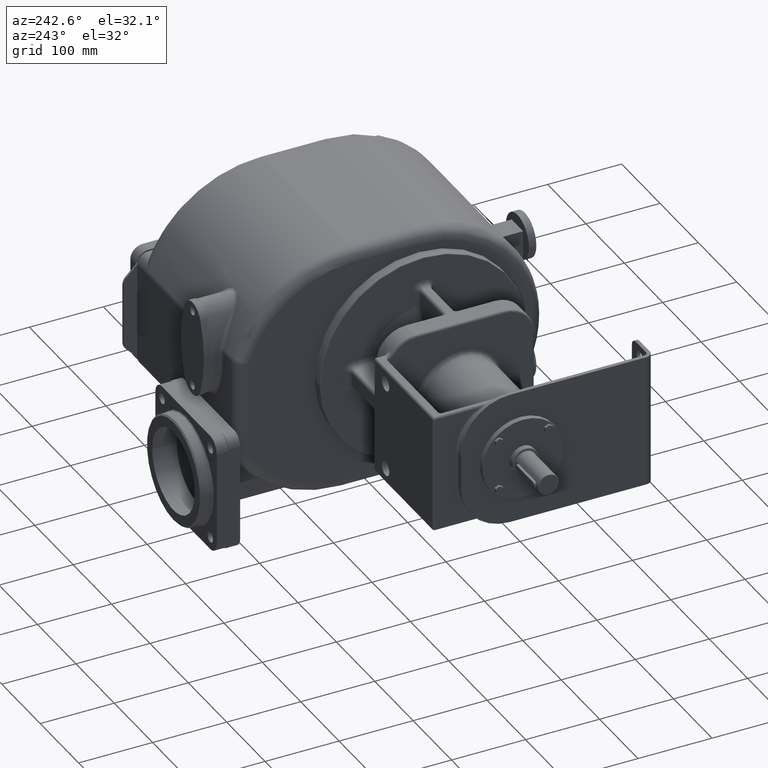
[diagram: clean part render]
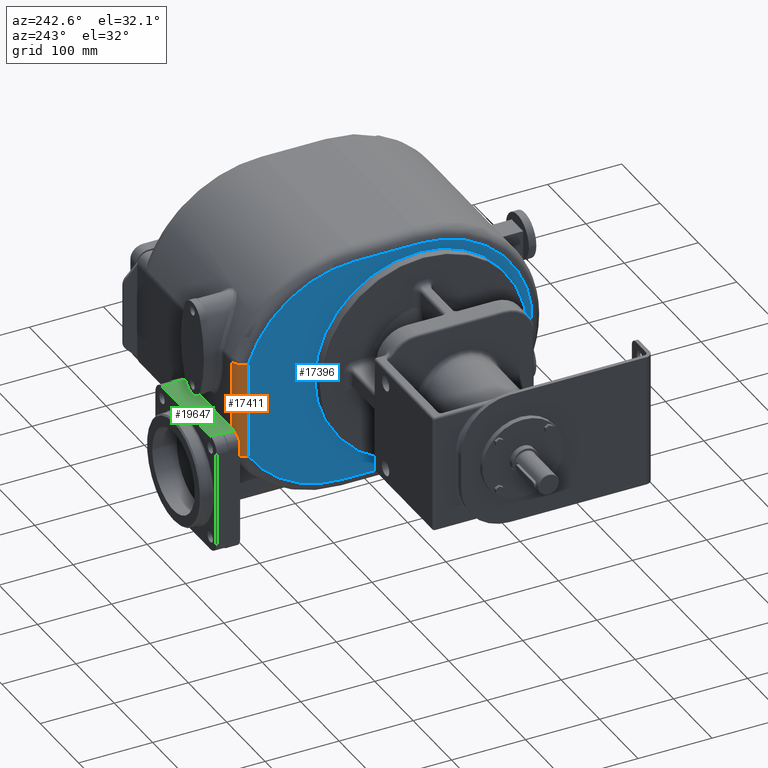
[diagram: same view with three faces highlighted in distinct colors, each labeled with its STEP entity id]
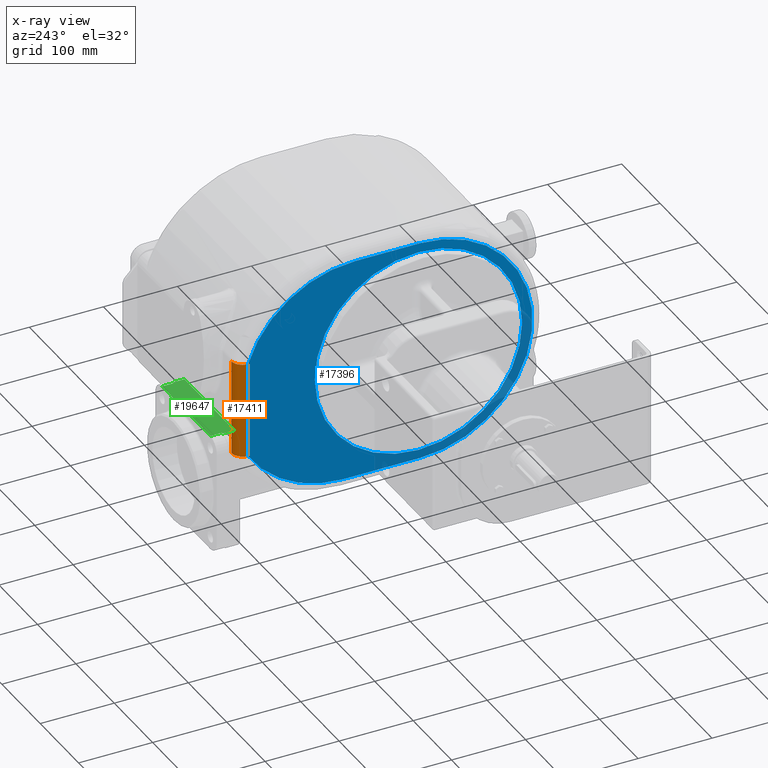
[diagram: x-ray of the same camera — body ghosted, the three highlighted faces saturated]
A machine part, auxiliary view with three faces highlighted in distinct colors.
The next image is the same camera in x-ray (body ghosted, the three faces saturated) — at least one of them is partly hidden behind the body in this view.
Their STEP definitions:

[orange] entity #17411 — the highlighted cylindrical surface (edge-blend (fillet) strip) has radius 15 mm, axis along (0, 0, -1).
#3656=DIRECTION('',(0.E0,0.E0,-1.E0));
#3657=VECTOR('',#3656,1.3E2);
#3658=CARTESIAN_POINT('',(-7.E1,4.E2,4.8E1));
#3659=LINE('',#3658,#3657);
#3693=CARTESIAN_POINT('',(-5.5E1,4.E2,4.8E1));
#3694=DIRECTION('',(0.E0,0.E0,-1.E0));
#3695=DIRECTION('',(-1.E0,0.E0,0.E0));
#3696=AXIS2_PLACEMENT_3D('',#3693,#3694,#3695);
#3842=DIRECTION('',(0.E0,0.E0,-1.E0));
#3843=VECTOR('',#3842,1.299999999790E2);
#3844=CARTESIAN_POINT('',(-5.5E1,4.15E2,4.799999999179E1));
#3845=LINE('',#3844,#3843);
#3964=CARTESIAN_POINT('',(-5.5E1,4.E2,-8.2E1));
#3965=DIRECTION('',(0.E0,0.E0,-1.E0));
#3966=DIRECTION('',(-1.E0,0.E0,0.E0));
#3967=AXIS2_PLACEMENT_3D('',#3964,#3965,#3966);
#11647=CARTESIAN_POINT('',(-5.5E1,4.15E2,4.799999999179E1));
#11648=CARTESIAN_POINT('',(-5.5E1,4.15E2,-8.199999998721E1));
#11649=VERTEX_POINT('',#11647);
#11650=VERTEX_POINT('',#11648);
#11651=CARTESIAN_POINT('',(-7.E1,4.E2,4.8E1));
#11652=CARTESIAN_POINT('',(-7.E1,4.E2,-8.2E1));
#11653=VERTEX_POINT('',#11651);
#11654=VERTEX_POINT('',#11652);
#17397=CARTESIAN_POINT('',(-5.5E1,4.E2,4.929340079489E1));
#17398=DIRECTION('',(0.E0,0.E0,-1.E0));
#17399=DIRECTION('',(-1.E0,0.E0,0.E0));
#17400=AXIS2_PLACEMENT_3D('',#17397,#17398,#17399);
#17401=CYLINDRICAL_SURFACE('',#17400,1.5E1);
#17403=ORIENTED_EDGE('',*,*,#17402,.F.);
#17405=ORIENTED_EDGE('',*,*,#17404,.F.);
#17406=ORIENTED_EDGE('',*,*,#17377,.T.);
#17408=ORIENTED_EDGE('',*,*,#17407,.T.);
#17409=EDGE_LOOP('',(#17403,#17405,#17406,#17408));
#17410=FACE_OUTER_BOUND('',#17409,.F.);
#17411=ADVANCED_FACE('',(#17410),#17401,.T.);
#3697=CIRCLE('',#3696,1.5E1);
#3968=CIRCLE('',#3967,1.5E1);
#17377=EDGE_CURVE('',#11653,#11654,#3659,.T.);
#17402=EDGE_CURVE('',#11649,#11650,#3845,.T.);
#17404=EDGE_CURVE('',#11653,#11649,#3697,.T.);
#17407=EDGE_CURVE('',#11654,#11650,#3968,.T.);

[blue] entity #17396 — the highlighted planar face has unit normal (1, 0, 0).
#3656=DIRECTION('',(0.E0,0.E0,-1.E0));
#3657=VECTOR('',#3656,1.3E2);
#3658=CARTESIAN_POINT('',(-7.E1,4.E2,4.8E1));
#3659=LINE('',#3658,#3657);
#3660=CARTESIAN_POINT('',(-7.E1,2.557779489814E2,0.E0));
#3661=DIRECTION('',(-1.E0,0.E0,0.E0));
#3662=DIRECTION('',(0.E0,0.E0,1.E0));
#3663=AXIS2_PLACEMENT_3D('',#3660,#3661,#3662);
#3665=DIRECTION('',(0.E0,1.E0,0.E0));
#3666=VECTOR('',#3665,8.777794898144E1);
#3667=CARTESIAN_POINT('',(-7.E1,1.68E2,1.52E2));
#3668=LINE('',#3667,#3666);
#3669=CARTESIAN_POINT('',(-7.E1,1.68E2,0.E0));
#3670=DIRECTION('',(-1.E0,0.E0,0.E0));
#3671=DIRECTION('',(0.E0,0.E0,-1.E0));
#3672=AXIS2_PLACEMENT_3D('',#3669,#3670,#3671);
#3674=DIRECTION('',(0.E0,-1.E0,0.E0));
#3675=VECTOR('',#3674,1.040156259538E2);
#3676=CARTESIAN_POINT('',(-7.E1,2.720156259538E2,-1.52E2));
#3677=LINE('',#3676,#3675);
#3678=CARTESIAN_POINT('',(-7.E1,2.720156259538E2,0.E0));
#3679=DIRECTION('',(-1.E0,0.E0,0.E0));
#3680=DIRECTION('',(0.E0,8.420024608303E-1,-5.394736842105E-1));
#3681=AXIS2_PLACEMENT_3D('',#3678,#3679,#3680);
#3683=CARTESIAN_POINT('',(-7.E1,1.7E2,0.E0));
#3684=DIRECTION('',(-1.E0,0.E0,0.E0));
#3685=DIRECTION('',(0.E0,-1.E0,0.E0));
#3686=AXIS2_PLACEMENT_3D('',#3683,#3684,#3685);
#3688=CARTESIAN_POINT('',(-7.E1,1.7E2,0.E0));
#3689=DIRECTION('',(-1.E0,0.E0,0.E0));
#3690=DIRECTION('',(0.E0,1.E0,0.E0));
#3691=AXIS2_PLACEMENT_3D('',#3688,#3689,#3690);
#11651=CARTESIAN_POINT('',(-7.E1,4.E2,4.8E1));
#11652=CARTESIAN_POINT('',(-7.E1,4.E2,-8.2E1));
#11653=VERTEX_POINT('',#11651);
#11654=VERTEX_POINT('',#11652);
#11655=CARTESIAN_POINT('',(-7.E1,2.720156259538E2,-1.52E2));
#11656=VERTEX_POINT('',#11655);
#11661=CARTESIAN_POINT('',(-7.E1,1.68E2,-1.52E2));
#11662=VERTEX_POINT('',#11661);
#11665=CARTESIAN_POINT('',(-7.E1,1.68E2,1.52E2));
#11666=VERTEX_POINT('',#11665);
#11669=CARTESIAN_POINT('',(-7.E1,2.557779489814E2,1.52E2));
#11670=VERTEX_POINT('',#11669);
#12040=CARTESIAN_POINT('',(-7.E1,3.E1,7.931755456707E-14));
#12041=CARTESIAN_POINT('',(-7.E1,3.1E2,-6.217247937901E-14));
#12042=VERTEX_POINT('',#12040);
#12043=VERTEX_POINT('',#12041);
#17372=CARTESIAN_POINT('',(-7.E1,1.7E2,0.E0));
#17373=DIRECTION('',(1.E0,0.E0,0.E0));
#17374=DIRECTION('',(0.E0,0.E0,1.E0));
#17375=AXIS2_PLACEMENT_3D('',#17372,#17373,#17374);
#17376=PLANE('',#17375);
#17378=ORIENTED_EDGE('',*,*,#17377,.F.);
#17380=ORIENTED_EDGE('',*,*,#17379,.F.);
#17382=ORIENTED_EDGE('',*,*,#17381,.F.);
#17384=ORIENTED_EDGE('',*,*,#17383,.F.);
#17386=ORIENTED_EDGE('',*,*,#17385,.F.);
#17388=ORIENTED_EDGE('',*,*,#17387,.F.);
#17389=EDGE_LOOP('',(#17378,#17380,#17382,#17384,#17386,#17388));
#17390=FACE_OUTER_BOUND('',#17389,.F.);
#17392=ORIENTED_EDGE('',*,*,#17391,.T.);
#17393=ORIENTED_EDGE('',*,*,#17362,.T.);
#17394=EDGE_LOOP('',(#17392,#17393));
#17395=FACE_BOUND('',#17394,.F.);
#17396=ADVANCED_FACE('',(#17390,#17395),#17376,.F.);
#3664=CIRCLE('',#3663,1.52E2);
#3673=CIRCLE('',#3672,1.52E2);
#3682=CIRCLE('',#3681,1.52E2);
#3687=CIRCLE('',#3686,1.4E2);
#3692=CIRCLE('',#3691,1.4E2);
#17362=EDGE_CURVE('',#12043,#12042,#3692,.T.);
#17377=EDGE_CURVE('',#11653,#11654,#3659,.T.);
#17379=EDGE_CURVE('',#11670,#11653,#3664,.T.);
#17381=EDGE_CURVE('',#11666,#11670,#3668,.T.);
#17383=EDGE_CURVE('',#11662,#11666,#3673,.T.);
#17385=EDGE_CURVE('',#11656,#11662,#3677,.T.);
#17387=EDGE_CURVE('',#11654,#11656,#3682,.T.);
#17391=EDGE_CURVE('',#12042,#12043,#3687,.T.);

[green] entity #19647 — the highlighted planar face has unit normal (0, 0, 1).
#5869=DIRECTION('',(-1.E0,0.E0,0.E0));
#5870=VECTOR('',#5869,1.3E2);
#5871=CARTESIAN_POINT('',(6.5E1,4.16E2,-4.4E1));
#5872=LINE('',#5871,#5870);
#5920=DIRECTION('',(0.E0,-1.E0,0.E0));
#5921=VECTOR('',#5920,1.6E1);
#5922=CARTESIAN_POINT('',(-6.5E1,4.32E2,-4.4E1));
#5923=LINE('',#5922,#5921);
#6020=DIRECTION('',(1.E0,0.E0,0.E0));
#6021=VECTOR('',#6020,2.E0);
#6022=CARTESIAN_POINT('',(6.3E1,4.32E2,-4.4E1));
#6023=LINE('',#6022,#6021);
#6029=DIRECTION('',(0.E0,-1.E0,0.E0));
#6030=VECTOR('',#6029,1.55E1);
#6031=CARTESIAN_POINT('',(-6.3E1,4.475E2,-4.4E1));
#6032=LINE('',#6031,#6030);
#6033=DIRECTION('',(1.E0,0.E0,0.E0));
#6034=VECTOR('',#6033,1.26E2);
#6035=CARTESIAN_POINT('',(-6.3E1,4.475E2,-4.4E1));
#6036=LINE('',#6035,#6034);
#6037=DIRECTION('',(0.E0,-1.E0,0.E0));
#6038=VECTOR('',#6037,1.55E1);
#6039=CARTESIAN_POINT('',(6.3E1,4.475E2,-4.4E1));
#6040=LINE('',#6039,#6038);
#6046=DIRECTION('',(1.E0,0.E0,0.E0));
#6047=VECTOR('',#6046,2.E0);
#6048=CARTESIAN_POINT('',(-6.5E1,4.32E2,-4.4E1));
#6049=LINE('',#6048,#6047);
#6618=DIRECTION('',(0.E0,1.E0,0.E0));
#6619=VECTOR('',#6618,1.6E1);
#6620=CARTESIAN_POINT('',(6.5E1,4.16E2,-4.4E1));
#6621=LINE('',#6620,#6619);
#11577=CARTESIAN_POINT('',(-6.5E1,4.16E2,-4.4E1));
#11579=VERTEX_POINT('',#11577);
#11586=CARTESIAN_POINT('',(6.5E1,4.16E2,-4.4E1));
#11588=VERTEX_POINT('',#11586);
#12298=CARTESIAN_POINT('',(6.5E1,4.32E2,-4.4E1));
#12300=VERTEX_POINT('',#12298);
#12303=CARTESIAN_POINT('',(-6.5E1,4.32E2,-4.4E1));
#12305=VERTEX_POINT('',#12303);
#12366=CARTESIAN_POINT('',(-6.3E1,4.475E2,-4.4E1));
#12367=CARTESIAN_POINT('',(6.3E1,4.475E2,-4.4E1));
#12368=VERTEX_POINT('',#12366);
#12369=VERTEX_POINT('',#12367);
#12422=CARTESIAN_POINT('',(-6.3E1,4.32E2,-4.4E1));
#12424=VERTEX_POINT('',#12422);
#12427=CARTESIAN_POINT('',(6.3E1,4.32E2,-4.4E1));
#12429=VERTEX_POINT('',#12427);
#19628=CARTESIAN_POINT('',(8.E1,4.3E2,-4.4E1));
#19629=DIRECTION('',(0.E0,0.E0,1.E0));
#19630=DIRECTION('',(-1.E0,0.E0,0.E0));
#19631=AXIS2_PLACEMENT_3D('',#19628,#19629,#19630);
#19632=PLANE('',#19631);
#19634=ORIENTED_EDGE('',*,*,#19633,.T.);
#19636=ORIENTED_EDGE('',*,*,#19635,.F.);
#19638=ORIENTED_EDGE('',*,*,#19637,.T.);
#19639=ORIENTED_EDGE('',*,*,#19620,.T.);
#19640=ORIENTED_EDGE('',*,*,#19609,.T.);
#19642=ORIENTED_EDGE('',*,*,#19641,.F.);
#19643=ORIENTED_EDGE('',*,*,#19434,.T.);
#19644=ORIENTED_EDGE('',*,*,#19471,.F.);
#19645=EDGE_LOOP('',(#19634,#19636,#19638,#19639,#19640,#19642,#19643,#19644));
#19646=FACE_OUTER_BOUND('',#19645,.F.);
#19647=ADVANCED_FACE('',(#19646),#19632,.T.);
#19434=EDGE_CURVE('',#11588,#11579,#5872,.T.);
#19471=EDGE_CURVE('',#12305,#11579,#5923,.T.);
#19609=EDGE_CURVE('',#12429,#12300,#6023,.T.);
#19620=EDGE_CURVE('',#12369,#12429,#6040,.T.);
#19633=EDGE_CURVE('',#12305,#12424,#6049,.T.);
#19635=EDGE_CURVE('',#12368,#12424,#6032,.T.);
#19637=EDGE_CURVE('',#12368,#12369,#6036,.T.);
#19641=EDGE_CURVE('',#11588,#12300,#6621,.T.);